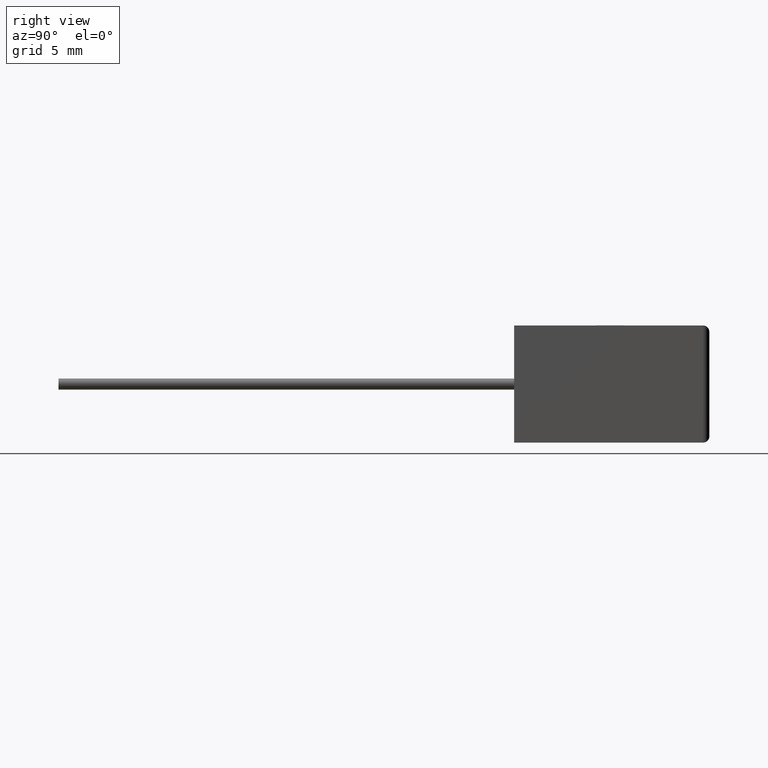
[diagram: clean part render]
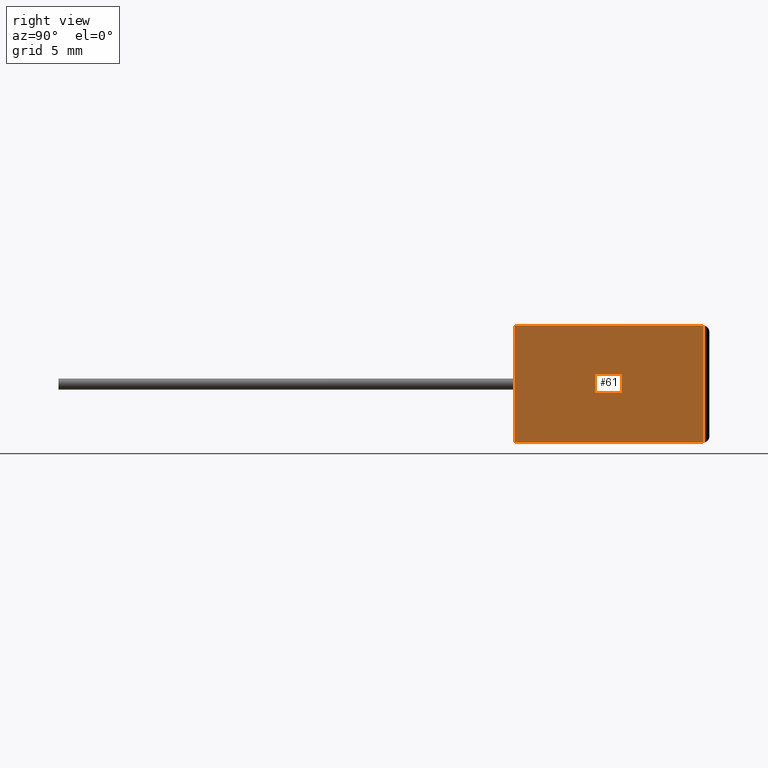
[diagram: same view with one face highlighted and labeled with its STEP entity id]
A machine part, right view. The second image highlights one B-rep face of the part: STEP entity #61.
In plain terms, the highlighted planar face has unit normal (-1, 0, 0).
Its self-contained STEP definition (entity closure, byte-faithful):
#41 = CARTESIAN_POINT ( 'NONE',  ( 24.00000000000000000, 14.49999999999999800, 9.000000000000000000 ) ) ;
#61 = ADVANCED_FACE ( 'NONE', ( #341 ), #342, .F. ) ;
#86 = AXIS2_PLACEMENT_3D ( 'NONE', #1871, #2069, #1510 ) ;
#109 = CARTESIAN_POINT ( 'NONE',  ( 24.00000000000000000, 0.0000000000000000000, 0.0000000000000000000 ) ) ;
#120 = VECTOR ( 'NONE', #881, 1000.000000000000000 ) ;
#177 = ORIENTED_EDGE ( 'NONE', *, *, #1312, .T. ) ;
#325 = DIRECTION ( 'NONE',  ( -0.0000000000000000000, -0.0000000000000000000, -1.000000000000000000 ) ) ;
#332 = EDGE_LOOP ( 'NONE', ( #1701, #2026, #2082, #177 ) ) ;
#341 = FACE_OUTER_BOUND ( 'NONE', #332, .T. ) ;
#342 = PLANE ( 'NONE',  #86 ) ;
#345 = EDGE_CURVE ( 'NONE', #715, #2218, #1597, .T. ) ;
#349 = VECTOR ( 'NONE', #2167, 1000.000000000000000 ) ;
#502 = CARTESIAN_POINT ( 'NONE',  ( 24.00000000000000000, 14.49999999999999800, 0.0000000000000000000 ) ) ;
#633 = VERTEX_POINT ( 'NONE', #1275 ) ;
#686 = CARTESIAN_POINT ( 'NONE',  ( 24.00000000000000000, 0.0000000000000000000, 9.000000000000000000 ) ) ;
#715 = VERTEX_POINT ( 'NONE', #502 ) ;
#724 = EDGE_CURVE ( 'NONE', #633, #2218, #1835, .T. ) ;
#881 = DIRECTION ( 'NONE',  ( 0.0000000000000000000, 1.000000000000000000, 0.0000000000000000000 ) ) ;
#1268 = CARTESIAN_POINT ( 'NONE',  ( 24.00000000000000000, 0.0000000000000000000, 9.000000000000000000 ) ) ;
#1275 = CARTESIAN_POINT ( 'NONE',  ( 24.00000000000000000, 0.0000000000000000000, 9.000000000000000000 ) ) ;
#1295 = VERTEX_POINT ( 'NONE', #2014 ) ;
#1312 = EDGE_CURVE ( 'NONE', #633, #1295, #1833, .T. ) ;
#1510 = DIRECTION ( 'NONE',  ( 0.0000000000000000000, 0.0000000000000000000, 1.000000000000000000 ) ) ;
#1597 = LINE ( 'NONE', #41, #349 ) ;
#1680 = VECTOR ( 'NONE', #325, 1000.000000000000000 ) ;
#1701 = ORIENTED_EDGE ( 'NONE', *, *, #1934, .T. ) ;
#1833 = LINE ( 'NONE', #1268, #1680 ) ;
#1835 = LINE ( 'NONE', #686, #1922 ) ;
#1871 = CARTESIAN_POINT ( 'NONE',  ( 24.00000000000000000, 0.0000000000000000000, 9.000000000000000000 ) ) ;
#1881 = LINE ( 'NONE', #109, #120 ) ;
#1922 = VECTOR ( 'NONE', #2024, 1000.000000000000000 ) ;
#1934 = EDGE_CURVE ( 'NONE', #1295, #715, #1881, .T. ) ;
#2014 = CARTESIAN_POINT ( 'NONE',  ( 24.00000000000000000, 0.0000000000000000000, 0.0000000000000000000 ) ) ;
#2024 = DIRECTION ( 'NONE',  ( 0.0000000000000000000, 1.000000000000000000, 0.0000000000000000000 ) ) ;
#2026 = ORIENTED_EDGE ( 'NONE', *, *, #345, .T. ) ;
#2069 = DIRECTION ( 'NONE',  ( -1.000000000000000000, 0.0000000000000000000, 0.0000000000000000000 ) ) ;
#2082 = ORIENTED_EDGE ( 'NONE', *, *, #724, .F. ) ;
#2115 = CARTESIAN_POINT ( 'NONE',  ( 24.00000000000000000, 14.49999999999999800, 9.000000000000000000 ) ) ;
#2167 = DIRECTION ( 'NONE',  ( -0.0000000000000000000, -0.0000000000000000000, 1.000000000000000000 ) ) ;
#2218 = VERTEX_POINT ( 'NONE', #2115 ) ;